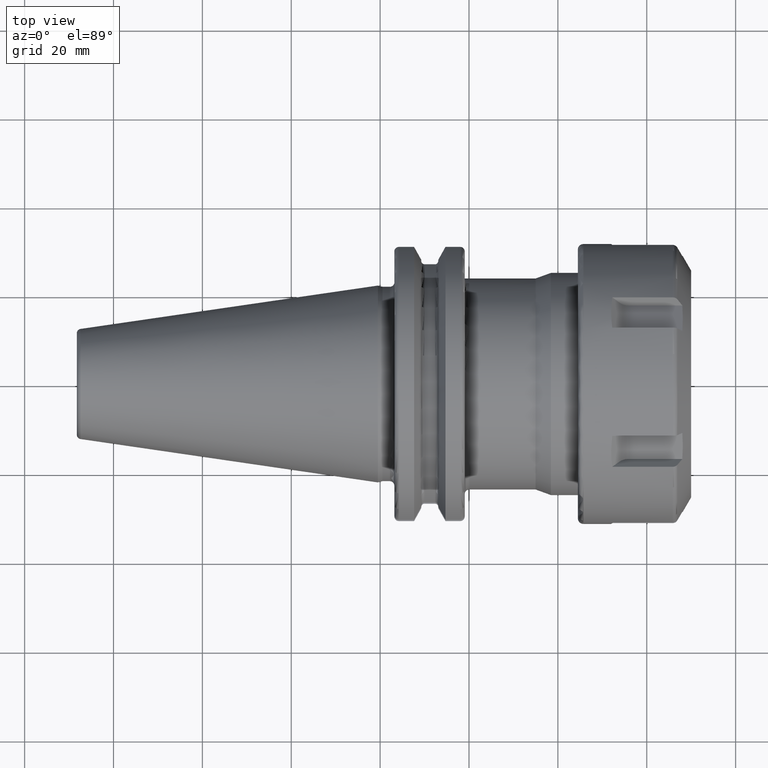
[diagram: clean part render]
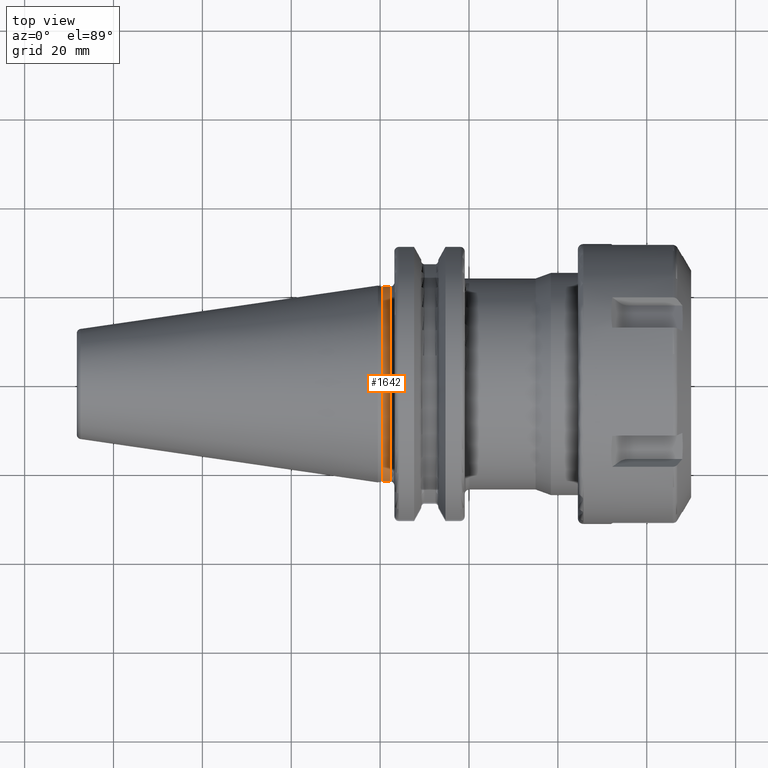
[diagram: same view with one face highlighted and labeled with its STEP entity id]
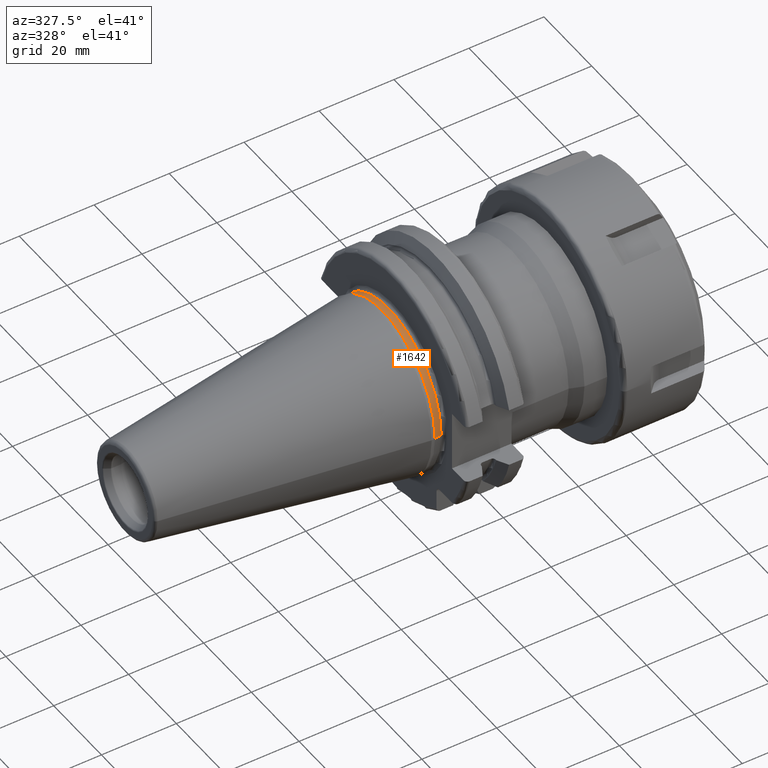
[diagram: same view with one face highlighted and labeled with its STEP entity id]
A machine part, top view. The second image highlights one B-rep face of the part: STEP entity #1642.
A second angle (auxiliary view) of the same face is appended — the face is thin or edge-on in the first view.
In plain terms, the highlighted cylindrical surface (partial cylindrical patch) has radius 21.875 mm, axis along (1, 0, 0).
Its self-contained STEP definition (entity closure, byte-faithful):
#73=CARTESIAN_POINT('',(5.5E-1,0.E0,0.E0));
#74=DIRECTION('',(1.E0,0.E0,0.E0));
#75=DIRECTION('',(0.E0,1.E0,0.E0));
#76=AXIS2_PLACEMENT_3D('',#73,#74,#75);
#78=CARTESIAN_POINT('',(2.2E0,0.E0,0.E0));
#79=DIRECTION('',(1.E0,0.E0,0.E0));
#80=DIRECTION('',(0.E0,1.E0,0.E0));
#81=AXIS2_PLACEMENT_3D('',#78,#79,#80);
#83=DIRECTION('',(-1.E0,0.E0,0.E0));
#84=VECTOR('',#83,1.65E0);
#85=CARTESIAN_POINT('',(2.2E0,2.1875E1,0.E0));
#86=LINE('',#85,#84);
#87=DIRECTION('',(-1.E0,0.E0,0.E0));
#88=VECTOR('',#87,1.65E0);
#89=CARTESIAN_POINT('',(2.2E0,-2.1875E1,0.E0));
#90=LINE('',#89,#88);
#1271=CARTESIAN_POINT('',(2.2E0,2.1875E1,0.E0));
#1272=CARTESIAN_POINT('',(5.5E-1,2.1875E1,0.E0));
#1273=VERTEX_POINT('',#1271);
#1274=VERTEX_POINT('',#1272);
#1276=CARTESIAN_POINT('',(2.2E0,-2.1875E1,0.E0));
#1278=VERTEX_POINT('',#1276);
#1279=CARTESIAN_POINT('',(5.5E-1,-2.1875E1,0.E0));
#1280=VERTEX_POINT('',#1279);
#1628=CARTESIAN_POINT('',(-7.2615E1,0.E0,0.E0));
#1629=DIRECTION('',(1.E0,0.E0,0.E0));
#1630=DIRECTION('',(0.E0,-1.E0,0.E0));
#1631=AXIS2_PLACEMENT_3D('',#1628,#1629,#1630);
#1632=CYLINDRICAL_SURFACE('',#1631,2.1875E1);
#1634=ORIENTED_EDGE('',*,*,#1633,.F.);
#1636=ORIENTED_EDGE('',*,*,#1635,.T.);
#1638=ORIENTED_EDGE('',*,*,#1637,.T.);
#1639=ORIENTED_EDGE('',*,*,#1621,.F.);
#1640=EDGE_LOOP('',(#1634,#1636,#1638,#1639));
#1641=FACE_OUTER_BOUND('',#1640,.F.);
#1642=ADVANCED_FACE('',(#1641),#1632,.T.);
#77=CIRCLE('',#76,2.1875E1);
#82=CIRCLE('',#81,2.1875E1);
#1621=EDGE_CURVE('',#1274,#1280,#77,.T.);
#1633=EDGE_CURVE('',#1273,#1274,#86,.T.);
#1635=EDGE_CURVE('',#1273,#1278,#82,.T.);
#1637=EDGE_CURVE('',#1278,#1280,#90,.T.);